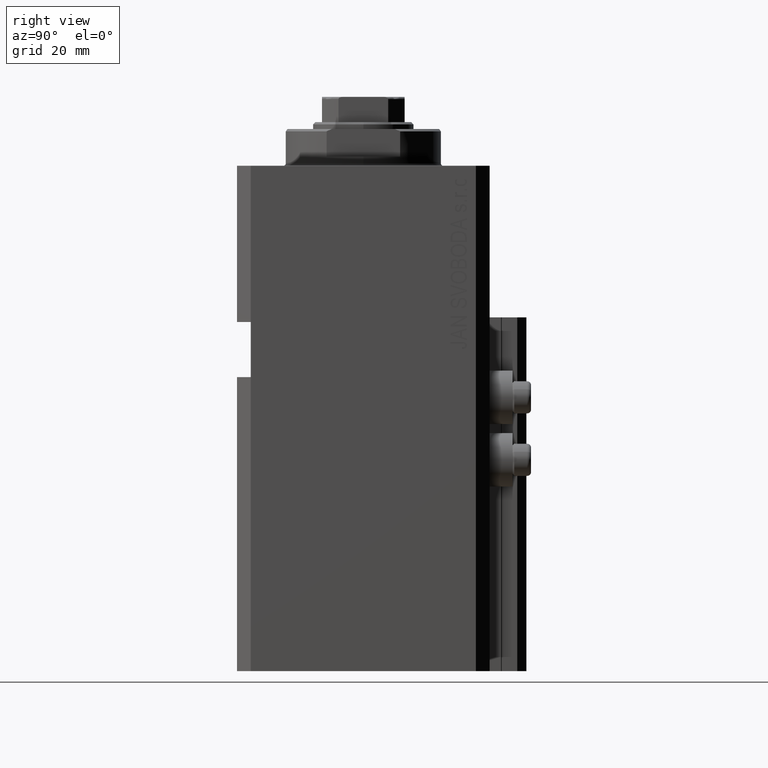
[diagram: clean part render]
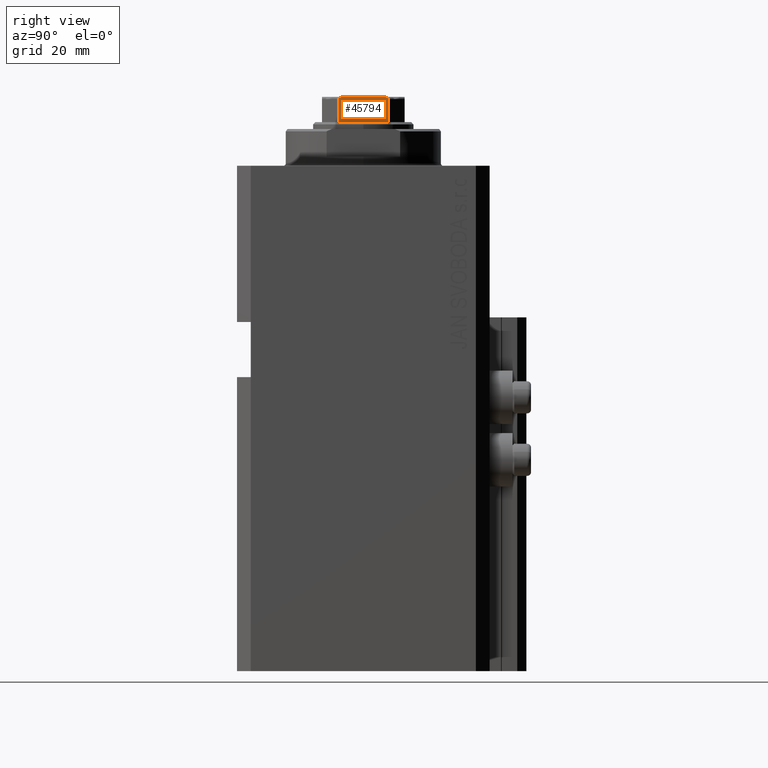
[diagram: same view with one face highlighted and labeled with its STEP entity id]
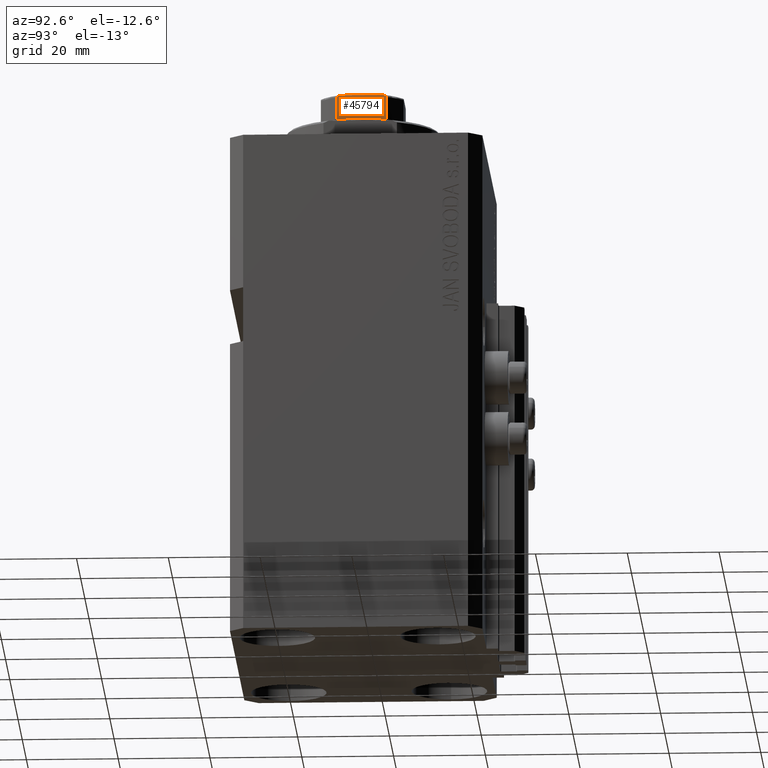
[diagram: same view with one face highlighted and labeled with its STEP entity id]
A machine part, right view. The second image highlights one B-rep face of the part: STEP entity #45794.
A second angle (auxiliary view) of the same face is appended — the face is thin or edge-on in the first view.
In plain terms, the highlighted planar face has unit normal (-1, -0, 0).
Its self-contained STEP definition (entity closure, byte-faithful):
#1094 = DIRECTION ( 'NONE',  ( -0.000000000000000000, -0.000000000000000000, 1.000000000000000000 ) ) ;
#2442 = FACE_OUTER_BOUND ( 'NONE', #45921, .T. ) ;
#2591 = CARTESIAN_POINT ( 'NONE',  ( 9.000000000000000000, 5.408326913195986130, 109.5999999999999659 ) ) ;
#2715 = LINE ( 'NONE', #26081, #24967 ) ;
#3718 = AXIS2_PLACEMENT_3D ( 'NONE', #24458, #39270, #6468 ) ;
#4904 = CARTESIAN_POINT ( 'NONE',  ( 9.000000000000000000, -4.569272810556667785, 115.0999999999999943 ) ) ;
#5167 = CARTESIAN_POINT ( 'NONE',  ( 8.999999999999996447, -5.408326913195990571, -0.001000000000001000089 ) ) ;
#6302 = CARTESIAN_POINT ( 'NONE',  ( 8.999999999999996447, -5.408326913195990571, 114.5999999999999801 ) ) ;
#6468 = DIRECTION ( 'NONE',  ( 9.637352644315595243E-17, -1.000000000000000000, 0.000000000000000000 ) ) ;
#6536 = VECTOR ( 'NONE', #14031, 1000.000000000000000 ) ;
#7039 = EDGE_CURVE ( 'NONE', #18660, #36824, #33643, .T. ) ;
#7962 = CARTESIAN_POINT ( 'NONE',  ( 9.000000000000001776, -4.358898943540675752, 115.1000000000000085 ) ) ;
#8117 = CARTESIAN_POINT ( 'NONE',  ( 9.000000000000000000, 4.358898943540675752, 115.1000000000000085 ) ) ;
#9099 = VECTOR ( 'NONE', #47167, 1000.000000000000000 ) ;
#12061 = CARTESIAN_POINT ( 'NONE',  ( 8.999999999999996447, -5.408326913195990571, 114.5999999999999801 ) ) ;
#12322 = CARTESIAN_POINT ( 'NONE',  ( 9.000000000000003553, -5.173732970196586400, 114.9331808643798780 ) ) ;
#12505 = CARTESIAN_POINT ( 'NONE',  ( 9.000000000000000000, 5.408326913195986130, 114.5999999999999801 ) ) ;
#12639 = ORIENTED_EDGE ( 'NONE', *, *, #40556, .T. ) ;
#14031 = DIRECTION ( 'NONE',  ( -9.637352644315595243E-17, 1.000000000000000000, -0.000000000000000000 ) ) ;
#15026 = CARTESIAN_POINT ( 'NONE',  ( 8.999999999999996447, -5.408326913195990571, 109.5999999999999943 ) ) ;
#15537 = CARTESIAN_POINT ( 'NONE',  ( 9.000000000000001776, 4.778533838065908590, 115.0778291476469946 ) ) ;
#15948 = EDGE_CURVE ( 'NONE', #46523, #29026, #42138, .T. ) ;
#16264 = CARTESIAN_POINT ( 'NONE',  ( 9.000000000000000000, 5.390954572107315990, 114.7053628521400270 ) ) ;
#17300 = EDGE_CURVE ( 'NONE', #42100, #36824, #20426, .T. ) ;
#18285 = ORIENTED_EDGE ( 'NONE', *, *, #7039, .F. ) ;
#18660 = VERTEX_POINT ( 'NONE', #15026 ) ;
#19503 = CARTESIAN_POINT ( 'NONE',  ( 9.000000000000001776, -4.775913644518307244, 115.0781460743083500 ) ) ;
#20100 = CARTESIAN_POINT ( 'NONE',  ( 9.000000000000000000, 5.077896145217221324, 114.9773016776067038 ) ) ;
#20426 = B_SPLINE_CURVE_WITH_KNOTS ( 'NONE', 3,
 ( #37681, #4904, #19503, #45119, #12322, #26915, #27639, #46073, #20696, #6302 ),
 .UNSPECIFIED., .F., .F.,
 ( 4, 2, 2, 2, 4 ),
 ( 8.673617379884035472E-19, 0.0006221106941441158222, 0.0009331660412161743839, 0.001088693714752203773, 0.001244221388288233162 ),
 .UNSPECIFIED. ) ;
#20696 = CARTESIAN_POINT ( 'NONE',  ( 9.000000000000003553, -5.408326913195983465, 114.6537434673188471 ) ) ;
#23692 = CARTESIAN_POINT ( 'NONE',  ( 9.000000000000000000, 5.335664150027712438, 114.7951843380013059 ) ) ;
#24458 = CARTESIAN_POINT ( 'NONE',  ( 9.000000000000000000, 8.999999999999998224, 115.1000000000000085 ) ) ;
#24967 = VECTOR ( 'NONE', #31672, 1000.000000000000000 ) ;
#25146 = LINE ( 'NONE', #25381, #9099 ) ;
#25381 = CARTESIAN_POINT ( 'NONE',  ( 9.000000000000000000, 8.999999999999998224, 115.1000000000000085 ) ) ;
#25590 = ORIENTED_EDGE ( 'NONE', *, *, #39350, .T. ) ;
#26081 = CARTESIAN_POINT ( 'NONE',  ( 9.000000000000000000, 5.408326913195986130, -0.001000000000001000089 ) ) ;
#26548 = CARTESIAN_POINT ( 'NONE',  ( 9.000000000000000000, 5.298186678102073444, 114.8338781215005042 ) ) ;
#26915 = CARTESIAN_POINT ( 'NONE',  ( 9.000000000000003553, -5.297634495023411993, 114.8344228052780238 ) ) ;
#27133 = ORIENTED_EDGE ( 'NONE', *, *, #33309, .F. ) ;
#27639 = CARTESIAN_POINT ( 'NONE',  ( 9.000000000000001776, -5.335288102212760286, 114.7956905402762118 ) ) ;
#29026 = VERTEX_POINT ( 'NONE', #46091 ) ;
#31091 = CARTESIAN_POINT ( 'NONE',  ( 9.000000000000000000, 5.408326913195986130, 114.5999999999999801 ) ) ;
#31672 = DIRECTION ( 'NONE',  ( -0.000000000000000000, -0.000000000000000000, 1.000000000000000000 ) ) ;
#31754 = LINE ( 'NONE', #46376, #6536 ) ;
#33309 = EDGE_CURVE ( 'NONE', #42100, #29026, #25146, .T. ) ;
#33643 = LINE ( 'NONE', #5167, #40376 ) ;
#33922 = ORIENTED_EDGE ( 'NONE', *, *, #17300, .T. ) ;
#36824 = VERTEX_POINT ( 'NONE', #12061 ) ;
#37681 = CARTESIAN_POINT ( 'NONE',  ( 9.000000000000001776, -4.358898943540675752, 115.1000000000000085 ) ) ;
#38277 = CARTESIAN_POINT ( 'NONE',  ( 9.000000000000001776, 5.174818616237107705, 114.9325218846533829 ) ) ;
#38915 = ORIENTED_EDGE ( 'NONE', *, *, #15948, .T. ) ;
#39270 = DIRECTION ( 'NONE',  ( -1.000000000000000000, -9.637352644315595243E-17, 0.000000000000000000 ) ) ;
#39350 = EDGE_CURVE ( 'NONE', #18660, #42774, #31754, .T. ) ;
#40376 = VECTOR ( 'NONE', #1094, 1000.000000000000000 ) ;
#40556 = EDGE_CURVE ( 'NONE', #42774, #46523, #2715, .T. ) ;
#41164 = CARTESIAN_POINT ( 'NONE',  ( 9.000000000000000000, 5.408326913195988794, 114.6535720727335530 ) ) ;
#42100 = VERTEX_POINT ( 'NONE', #7962 ) ;
#42138 = B_SPLINE_CURVE_WITH_KNOTS ( 'NONE', 3,
 ( #31091, #41164, #16264, #23692, #26548, #38277, #20100, #15537, #45710, #8117 ),
 .UNSPECIFIED., .F., .F.,
 ( 4, 2, 2, 2, 4 ),
 ( 2.823925224926892107E-17, 0.0001582447020888309592, 0.0003164894041776336749, 0.0006329788083552650730, 0.001265957616710514533 ),
 .UNSPECIFIED. ) ;
#42653 = PLANE ( 'NONE',  #3718 ) ;
#42774 = VERTEX_POINT ( 'NONE', #2591 ) ;
#45119 = CARTESIAN_POINT ( 'NONE',  ( 9.000000000000001776, -5.074490744525492758, 114.9787200784332413 ) ) ;
#45710 = CARTESIAN_POINT ( 'NONE',  ( 9.000000000000001776, 4.569278586016980448, 115.1000000000000369 ) ) ;
#45794 = ADVANCED_FACE ( 'NONE', ( #2442 ), #42653, .F. ) ;
#45921 = EDGE_LOOP ( 'NONE', ( #27133, #33922, #18285, #25590, #12639, #38915 ) ) ;
#46073 = CARTESIAN_POINT ( 'NONE',  ( 9.000000000000000000, -5.390945448132527851, 114.7054816538970385 ) ) ;
#46091 = CARTESIAN_POINT ( 'NONE',  ( 9.000000000000000000, 4.358898943540675752, 115.1000000000000085 ) ) ;
#46376 = CARTESIAN_POINT ( 'NONE',  ( 9.000000000000000000, 8.999999999999998224, 109.6000000000000085 ) ) ;
#46523 = VERTEX_POINT ( 'NONE', #12505 ) ;
#47167 = DIRECTION ( 'NONE',  ( -9.637352644315595243E-17, 1.000000000000000000, -0.000000000000000000 ) ) ;